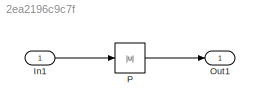
MODEL slx_2ea2196c9c7f
KIND model
CONFIG AbsTol = auto
CONFIG EnableMultiTasking = off
CONFIG FixedStep = auto
CONFIG MaxStep = auto
CONFIG MinStep = auto
CONFIG RelTol = 1e-3
CONFIG SampleTimeConstraint = Unconstrained
CONFIG Solver = FixedStepDiscrete
CONFIG SolverName = FixedStepDiscrete
CONFIG StartTime = 0.0
CONFIG StopTime = 10.0
BLOCK [Inport] In1
  IconDisplay = Port number
  OutDataTypeStr = int8
  PortDimensions = [3,4,2]
BLOCK [Outport] Out1
  IconDisplay = Port number
BLOCK [Abs] P
  OutDataTypeStr = int8
  RndMeth = Nearest
LINE In1:1 -> P:1
LINE P:1 -> Out1:1
